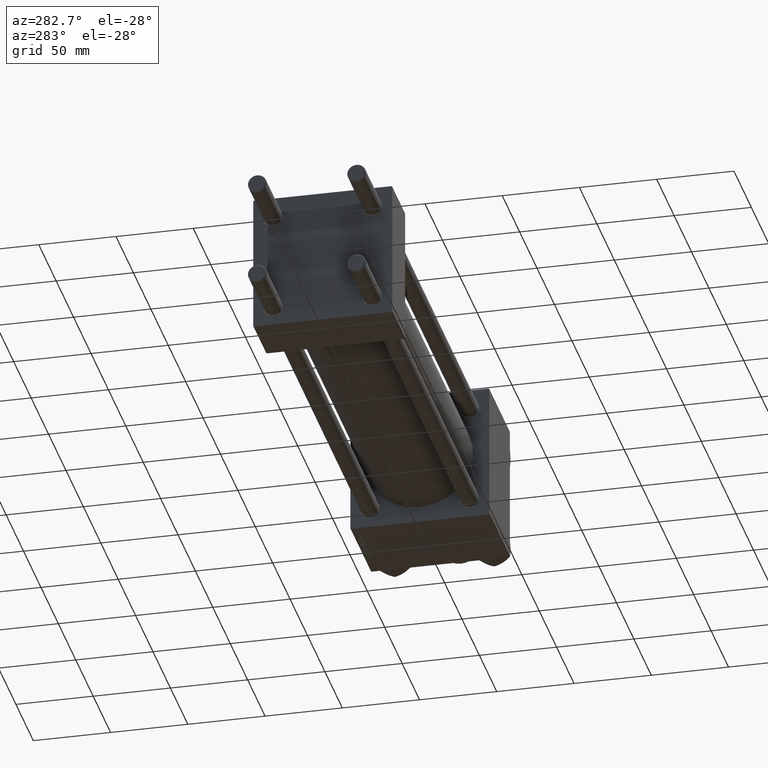
[diagram: clean part render]
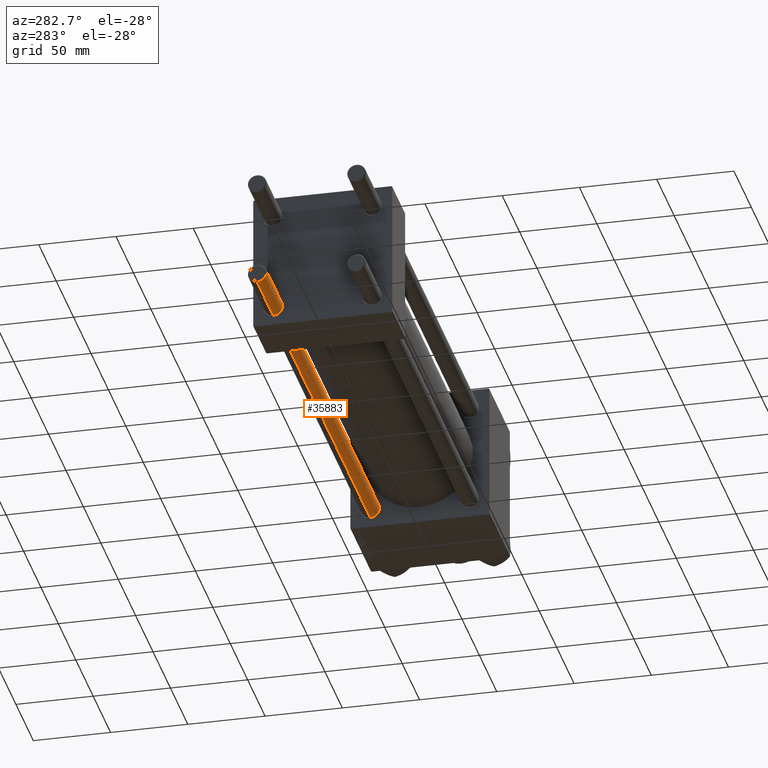
[diagram: same view with one face highlighted and labeled with its STEP entity id]
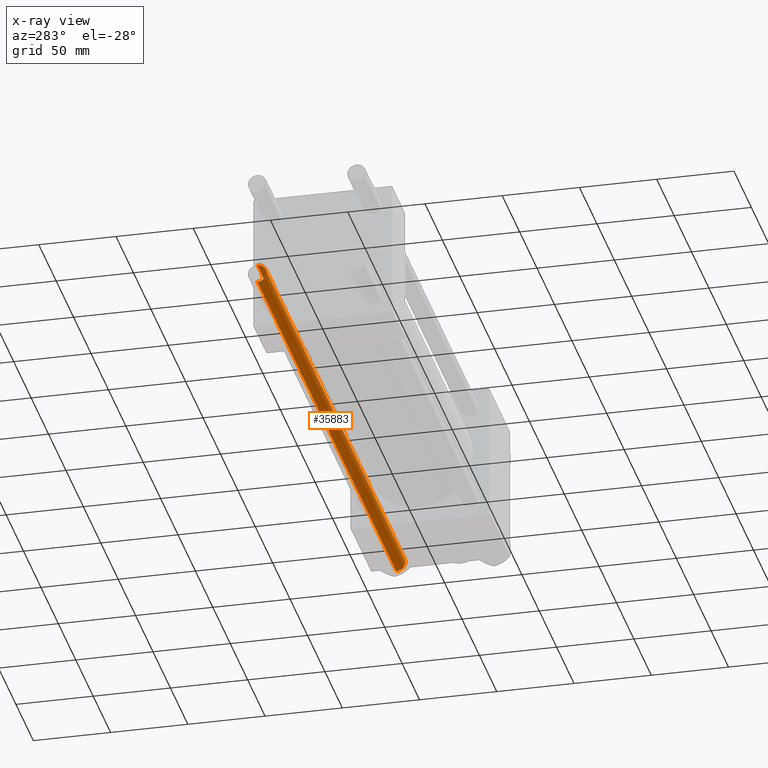
[diagram: x-ray of the same camera — body ghosted, the highlighted face saturated]
A machine part, auxiliary view. The second image highlights one B-rep face of the part: STEP entity #35883.
The next image is the same camera in x-ray: the body ghosted, the highlighted face saturated — about 0% of this face is hidden behind the body in this view.
In plain terms, the highlighted cylindrical surface (edge-blend (fillet) strip) has radius 6 mm, axis along (1, 0, -0).
Its self-contained STEP definition (entity closure, byte-faithful):
#1442 = DIRECTION ( 'NONE',  ( -0.000000000000000000, -0.000000000000000000, -1.000000000000000000 ) ) ;
#1831 = CYLINDRICAL_SURFACE ( 'NONE', #22271, 6.000000000000000888 ) ;
#3079 = ORIENTED_EDGE ( 'NONE', *, *, #7927, .T. ) ;
#3142 = EDGE_CURVE ( 'NONE', #21637, #14840, #12637, .T. ) ;
#3741 = CARTESIAN_POINT ( 'NONE',  ( 6.000000000000000888, 7.347880794884120722E-16, 0.5000000000000004441 ) ) ;
#7927 = EDGE_CURVE ( 'NONE', #40746, #10399, #19431, .T. ) ;
#10398 = VECTOR ( 'NONE', #34949, 1000.000000000000000 ) ;
#10399 = VERTEX_POINT ( 'NONE', #28634 ) ;
#10744 = DIRECTION ( 'NONE',  ( 1.000000000000000000, 0.000000000000000000, 0.000000000000000000 ) ) ;
#12314 = EDGE_CURVE ( 'NONE', #10399, #14840, #38166, .T. ) ;
#12637 = LINE ( 'NONE', #44395, #13493 ) ;
#13493 = VECTOR ( 'NONE', #1442, 1000.000000000000000 ) ;
#14490 = DIRECTION ( 'NONE',  ( 0.000000000000000000, 0.000000000000000000, -1.000000000000000000 ) ) ;
#14601 = AXIS2_PLACEMENT_3D ( 'NONE', #18611, #15557, #10744 ) ;
#14840 = VERTEX_POINT ( 'NONE', #3741 ) ;
#15557 = DIRECTION ( 'NONE',  ( -0.000000000000000000, -0.000000000000000000, 1.000000000000000000 ) ) ;
#16827 = CARTESIAN_POINT ( 'NONE',  ( 0.000000000000000000, 0.000000000000000000, 400.0000000000000000 ) ) ;
#18611 = CARTESIAN_POINT ( 'NONE',  ( 0.000000000000000000, 0.000000000000000000, 0.5000000000000004441 ) ) ;
#18736 = EDGE_CURVE ( 'NONE', #21637, #40746, #21849, .T. ) ;
#19431 = LINE ( 'NONE', #31902, #10398 ) ;
#21637 = VERTEX_POINT ( 'NONE', #35101 ) ;
#21849 = CIRCLE ( 'NONE', #32391, 6.000000000000000888 ) ;
#22271 = AXIS2_PLACEMENT_3D ( 'NONE', #16827, #44285, #31606 ) ;
#26194 = DIRECTION ( 'NONE',  ( 1.000000000000000000, 0.000000000000000000, 0.000000000000000000 ) ) ;
#28536 = FACE_OUTER_BOUND ( 'NONE', #39350, .T. ) ;
#28634 = CARTESIAN_POINT ( 'NONE',  ( -6.000000000000000888, 0.000000000000000000, 0.5000000000000004441 ) ) ;
#31606 = DIRECTION ( 'NONE',  ( -1.000000000000000000, 0.000000000000000000, 0.000000000000000000 ) ) ;
#31902 = CARTESIAN_POINT ( 'NONE',  ( -6.000000000000000888, 0.000000000000000000, 400.0000000000000000 ) ) ;
#32391 = AXIS2_PLACEMENT_3D ( 'NONE', #48822, #14490, #26194 ) ;
#34949 = DIRECTION ( 'NONE',  ( -0.000000000000000000, -0.000000000000000000, -1.000000000000000000 ) ) ;
#35101 = CARTESIAN_POINT ( 'NONE',  ( 6.000000000000000888, 7.347880794884120722E-16, 399.5000000000000000 ) ) ;
#35883 = ADVANCED_FACE ( 'NONE', ( #28536 ), #1831, .T. ) ;
#36188 = CARTESIAN_POINT ( 'NONE',  ( -6.000000000000000888, 0.000000000000000000, 399.5000000000000000 ) ) ;
#38166 = CIRCLE ( 'NONE', #14601, 6.000000000000000888 ) ;
#39350 = EDGE_LOOP ( 'NONE', ( #45361, #49291, #3079, #43882 ) ) ;
#40746 = VERTEX_POINT ( 'NONE', #36188 ) ;
#43882 = ORIENTED_EDGE ( 'NONE', *, *, #12314, .T. ) ;
#44285 = DIRECTION ( 'NONE',  ( -0.000000000000000000, -0.000000000000000000, -1.000000000000000000 ) ) ;
#44395 = CARTESIAN_POINT ( 'NONE',  ( 6.000000000000000888, 7.347880794884120722E-16, 400.0000000000000000 ) ) ;
#45361 = ORIENTED_EDGE ( 'NONE', *, *, #3142, .F. ) ;
#48822 = CARTESIAN_POINT ( 'NONE',  ( 0.000000000000000000, 0.000000000000000000, 399.5000000000000000 ) ) ;
#49291 = ORIENTED_EDGE ( 'NONE', *, *, #18736, .T. ) ;